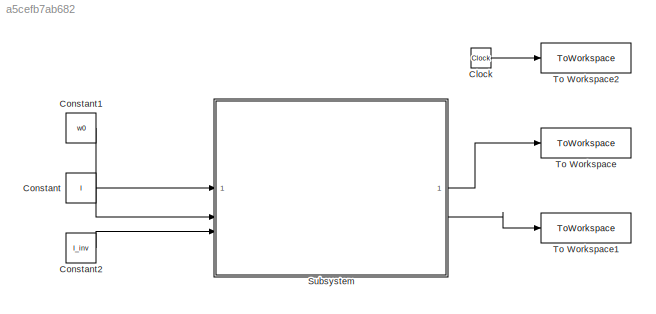
MODEL slx_a5cefb7ab682
KIND model
CONFIG AbsTol = auto
CONFIG EnableMultiTasking = off
CONFIG FixedStep = auto
CONFIG MaxStep = auto
CONFIG MinStep = auto
CONFIG RelTol = 1e-3
CONFIG SampleTimeConstraint = Unconstrained
CONFIG SolverName = VariableStepAuto
CONFIG StartTime = 0.0
CONFIG StopTime = stoptime
BLOCK [Clock] Clock
BLOCK [Constant] Constant
  Value = I
  VectorParams1D = off
BLOCK [Constant] Constant1
  Value = w0
  VectorParams1D = off
BLOCK [Constant] Constant2
  Value = I_inv
  VectorParams1D = off
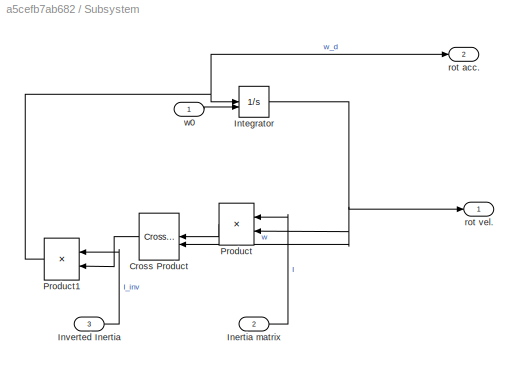
BLOCK [SubSystem] Subsystem
BLOCK [Reference] Subsystem/Cross Product  REF=matrix_library/Cross Product
  LibrarySourceBlock = simulink/Matrix\nOperations/Cross Product
  NameLocation = top
  SourceBlock = matrix_library/Cross Product
  SourceType = CrossProduct
BLOCK [Inport] Subsystem/Inertia matrix
  Port = 2
BLOCK [Integrator] Subsystem/Integrator
  InitialConditionSource = external
BLOCK [Inport] Subsystem/Inverted Inertia
  Port = 3
BLOCK [Product] Subsystem/Product
  Multiplication = Matrix(*)
  NameLocation = top
BLOCK [Product] Subsystem/Product1
  Multiplication = Matrix(*)
  NameLocation = top
BLOCK [Outport] Subsystem/rot acc.
  Port = 2
BLOCK [Outport] Subsystem/rot vel.
BLOCK [Inport] Subsystem/w0
BLOCK [ToWorkspace] To Workspace
  FixptAsFi = on
  MaxDataPoints = inf
  SampleTime = -1
  VariableName = w
BLOCK [ToWorkspace] To Workspace1
  FixptAsFi = on
  MaxDataPoints = inf
  SampleTime = -1
  VariableName = w_d
BLOCK [ToWorkspace] To Workspace2
  FixptAsFi = on
  MaxDataPoints = inf
  SampleTime = -1
  VariableName = time
LINE Clock:1 -> To Workspace2:1
LINE Constant1:1 -> Subsystem:1
LINE Constant2:1 -> Subsystem:3
LINE Constant:1 -> Subsystem:2
LINE Subsystem/Cross Product:1 -> Subsystem/Product1:2
LINE Subsystem/Inertia matrix:1 -> Subsystem/Product:1
NET Subsystem/Integrator:1 -> Subsystem/Cross Product:2, Subsystem/Product:2, Subsystem/rot vel.:1
LINE Subsystem/Inverted Inertia:1 -> Subsystem/Product1:1
NET Subsystem/Product1:1 -> Subsystem/Integrator:1, Subsystem/rot acc.:1
LINE Subsystem/Product:1 -> Subsystem/Cross Product:1
LINE Subsystem/w0:1 -> Subsystem/Integrator:2
LINE Subsystem:1 -> To Workspace:1
LINE Subsystem:2 -> To Workspace1:1
note: NET lines group one-source signal fan-out (src -> all destinations, sorted); 1:1 wires keep LINE
